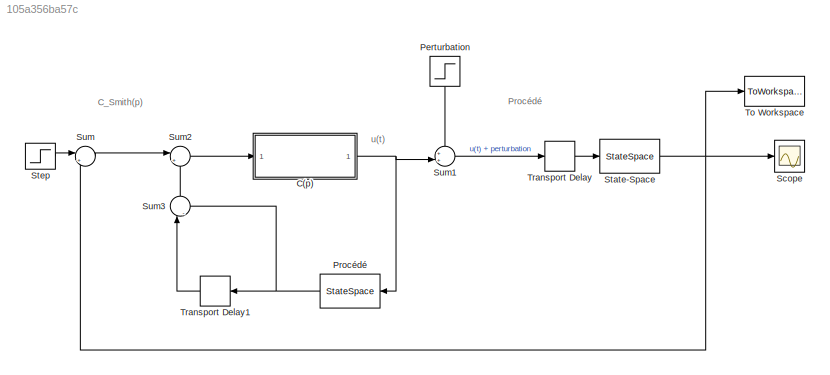
MODEL slx_105a356ba57c
KIND model
CONFIG AbsTol = auto
CONFIG FixedStep = auto
CONFIG MaxStep = auto
CONFIG MinStep = auto
CONFIG RelTol = 1e-8
CONFIG SampleTimeConstraint = Unconstrained
CONFIG Solver = ode45
CONFIG SolverMode = Auto
CONFIG SolverName = ode45
CONFIG StartTime = 0.0
CONFIG StopTime = 20.0
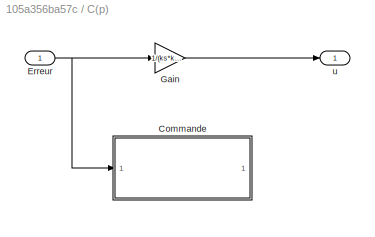
BLOCK [SubSystem] C(p)
  Ports = [1, 1]
  RequestExecContextInheritance = off
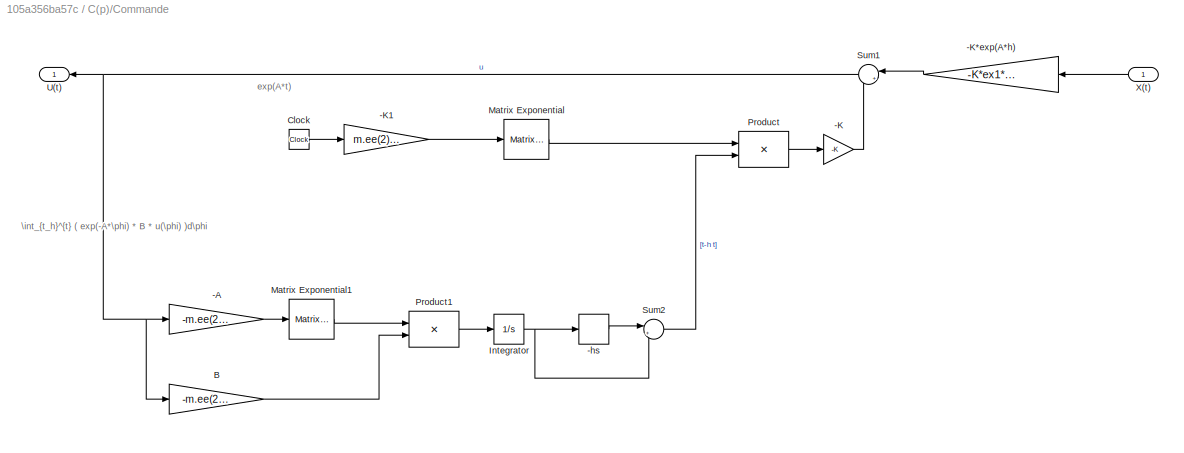
BLOCK [SubSystem] C(p)/Commande
  Ports = [1, 1]
  RequestExecContextInheritance = off
BLOCK [Gain] C(p)/Commande/-A
  Gain = -m.ee(2).a
  OutDataTypeStr = Inherit: Inherit via internal rule
  ParamDataTypeStr = Inherit: Inherit via internal rule
  SaturateOnIntegerOverflow = off
BLOCK [Gain] C(p)/Commande/-K
  Gain = -K
  Multiplication = Matrix(K*u)
  OutDataTypeStr = Inherit: Inherit via internal rule
  ParamDataTypeStr = Inherit: Inherit via internal rule
  SaturateOnIntegerOverflow = off
BLOCK [Gain] C(p)/Commande/-K*exp(A*h)
  Gain = -K*ex1*ones(2,1)
  OutDataTypeStr = Inherit: Inherit via internal rule
  ParamDataTypeStr = Inherit: Inherit via internal rule
  SaturateOnIntegerOverflow = off
BLOCK [Gain] C(p)/Commande/-K1
  Gain = m.ee(2).a
  OutDataTypeStr = Inherit: Inherit via internal rule
  ParamDataTypeStr = Inherit: Inherit via internal rule
  SaturateOnIntegerOverflow = off
BLOCK [TransportDelay] C(p)/Commande/-hs
  DelayTime = h
  Ports = [1, 1]
BLOCK [Gain] C(p)/Commande/B
  Gain = -m.ee(2).b
  OutDataTypeStr = Inherit: Inherit via internal rule
  ParamDataTypeStr = Inherit: Inherit via internal rule
  SaturateOnIntegerOverflow = off
BLOCK [Clock] C(p)/Commande/Clock
BLOCK [Integrator] C(p)/Commande/Integrator
  AbsoluteTolerance = 1e-6
  Ports = [1, 1]
BLOCK [Reference] C(p)/Commande/Matrix Exponential  REF=dspmtrx3/Matrix
Exponential
  Ports = [1, 1]
  SourceBlock = dspmtrx3/Matrix\nExponential
  SourceType = Matrix Exponential
BLOCK [Reference] C(p)/Commande/Matrix Exponential1  REF=dspmtrx3/Matrix
Exponential
  Ports = [1, 1]
  SourceBlock = dspmtrx3/Matrix\nExponential
  SourceType = Matrix Exponential
BLOCK [Product] C(p)/Commande/Product
  InputSameDT = off
  Multiplication = Matrix(*)
  OutDataTypeStr = Inherit: Inherit via internal rule
  Ports = [2, 1]
  RndMeth = Floor
  SaturateOnIntegerOverflow = off
BLOCK [Product] C(p)/Commande/Product1
  InputSameDT = off
  Multiplication = Matrix(*)
  OutDataTypeStr = Inherit: Inherit via internal rule
  Ports = [2, 1]
  RndMeth = Floor
  SaturateOnIntegerOverflow = off
BLOCK [Sum] C(p)/Commande/Sum1
  IconShape = round
  InputSameDT = off
  Inputs = |++
  OutDataTypeStr = Inherit: Inherit via internal rule
  Ports = [2, 1]
  SaturateOnIntegerOverflow = off
BLOCK [Sum] C(p)/Commande/Sum2
  IconShape = round
  InputSameDT = off
  Inputs = |+-
  OutDataTypeStr = Inherit: Inherit via internal rule
  Ports = [2, 1]
  SaturateOnIntegerOverflow = off
BLOCK [Outport] C(p)/Commande/U(t)
  IconDisplay = Port number
BLOCK [Inport] C(p)/Commande/X(t)
  IconDisplay = Port number
BLOCK [Inport] C(p)/Erreur 
  IconDisplay = Port number
BLOCK [Gain] C(p)/Gain
  Gain = 1/(ks*kr*km*4*taum)
  OutDataTypeStr = Inherit: Inherit via internal rule
  ParamDataTypeStr = Inherit: Inherit via internal rule
  SaturateOnIntegerOverflow = off
BLOCK [Outport] C(p)/u 
  IconDisplay = Port number
BLOCK [Step] Perturbation
  After = 0
  SampleTime = 0
  Time = 0
BLOCK [StateSpace] Procédé
  A = m.ee(2).a
  B = m.ee(2).b
  C = m.ee(2).c
  D = m.ee(2).d
  Ports = [1, 1]
  X0 = 0
BLOCK [Scope] Scope
  Floating = off
  NumInputPorts = 1
  Ports = [1]
BLOCK [StateSpace] State-Space
  A = m.ee(2).a
  B = m.ee(2).b
  C = m.ee(2).c
  D = m.ee(2).d
  Ports = [1, 1]
  X0 = 0
BLOCK [Step] Step
  SampleTime = 0
  Time = 0
BLOCK [Sum] Sum
  IconShape = round
  InputSameDT = off
  Inputs = |+-
  OutDataTypeStr = Inherit: Inherit via internal rule
  Ports = [2, 1]
  SaturateOnIntegerOverflow = off
BLOCK [Sum] Sum1
  IconShape = round
  InputSameDT = off
  Inputs = ++|
  OutDataTypeStr = Inherit: Inherit via internal rule
  Ports = [2, 1]
  SaturateOnIntegerOverflow = off
BLOCK [Sum] Sum2
  IconShape = round
  InputSameDT = off
  Inputs = |+-
  OutDataTypeStr = Inherit: Inherit via internal rule
  Ports = [2, 1]
  SaturateOnIntegerOverflow = off
BLOCK [Sum] Sum3
  IconShape = round
  InputSameDT = off
  Inputs = |-+
  OutDataTypeStr = Inherit: Inherit via internal rule
  Ports = [2, 1]
  SaturateOnIntegerOverflow = off
BLOCK [ToWorkspace] To Workspace
  FixptAsFi = on
  MaxDataPoints = inf
  Ports = [1]
  SampleTime = -1
  Save2DSignal = 3-D array (concatenate along third dimension)
  SaveFormat = Structure With Time
  VariableName = VgCorSmith
BLOCK [TransportDelay] Transport Delay
  DelayTime = h
  Ports = [1, 1]
BLOCK [TransportDelay] Transport Delay1
  DelayTime = h
  Ports = [1, 1]
ANNOTATION (root): C_Smith(p)
ANNOTATION (root): Procédé
ANNOTATION (root): u(t)
ANNOTATION C(p)/Commande: \int_{t_h}^{t} ( exp(-A*\phi) * B * u(\phi) )d\phi
ANNOTATION C(p)/Commande: exp(A*t)
LINE C(p)/Commande/-A:1 -> C(p)/Commande/Matrix Exponential1:1
LINE C(p)/Commande/-K*exp(A*h):1 -> C(p)/Commande/Sum1:1
LINE C(p)/Commande/-K1:1 -> C(p)/Commande/Matrix Exponential:1
LINE C(p)/Commande/-K:1 -> C(p)/Commande/Sum1:2
LINE C(p)/Commande/-hs:1 -> C(p)/Commande/Sum2:1
LINE C(p)/Commande/B:1 -> C(p)/Commande/Product1:2
LINE C(p)/Commande/Clock:1 -> C(p)/Commande/-K1:1
NET C(p)/Commande/Integrator:1 -> C(p)/Commande/-hs:1, C(p)/Commande/Sum2:2
LINE C(p)/Commande/Matrix Exponential1:1 -> C(p)/Commande/Product1:1
LINE C(p)/Commande/Matrix Exponential:1 -> C(p)/Commande/Product:1
LINE C(p)/Commande/Product1:1 -> C(p)/Commande/Integrator:1
LINE C(p)/Commande/Product:1 -> C(p)/Commande/-K:1
NET C(p)/Commande/Sum1:1 -> C(p)/Commande/-A:1, C(p)/Commande/B:1, C(p)/Commande/U(t):1
LINE C(p)/Commande/Sum2:1 -> C(p)/Commande/Product:2
LINE C(p)/Commande/X(t):1 -> C(p)/Commande/-K*exp(A*h):1
NET C(p)/Erreur :1 -> C(p)/Commande:1, C(p)/Gain:1
LINE C(p)/Gain:1 -> C(p)/u :1
NET C(p):1 -> Procédé:1, Sum1:2
LINE Perturbation:1 -> Sum1:1
NET Procédé:1 -> Sum3:2, Transport Delay1:1
NET State-Space:1 -> Scope:1, Sum:2, To Workspace:1
LINE Step:1 -> Sum:1
LINE Sum1:1 -> Transport Delay:1
LINE Sum2:1 -> C(p):1
LINE Sum3:1 -> Sum2:2
LINE Sum:1 -> Sum2:1
LINE Transport Delay1:1 -> Sum3:1
LINE Transport Delay:1 -> State-Space:1
note: NET lines group one-source signal fan-out (src -> all destinations, sorted); 1:1 wires keep LINE
